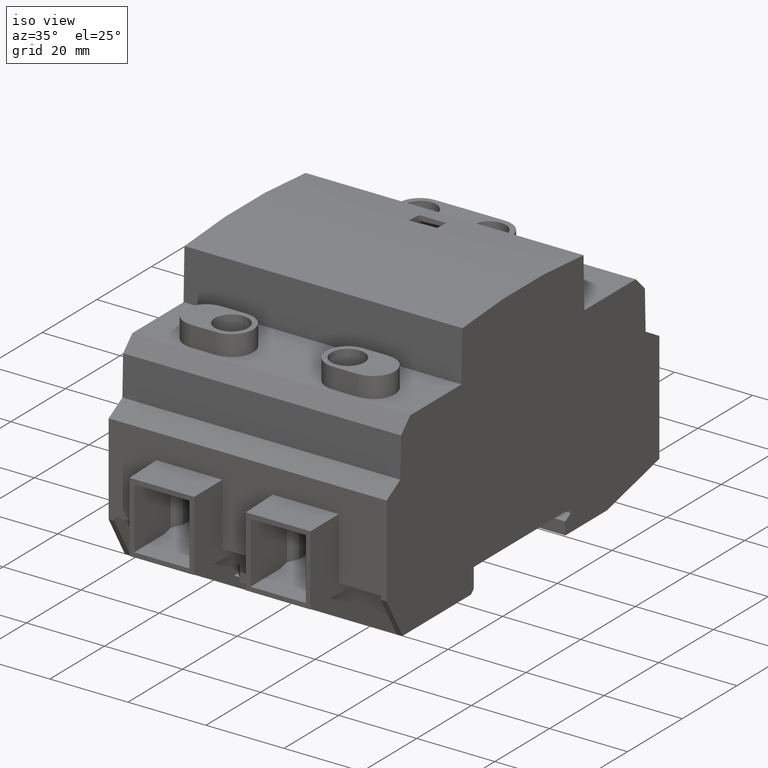
[diagram: clean part render]
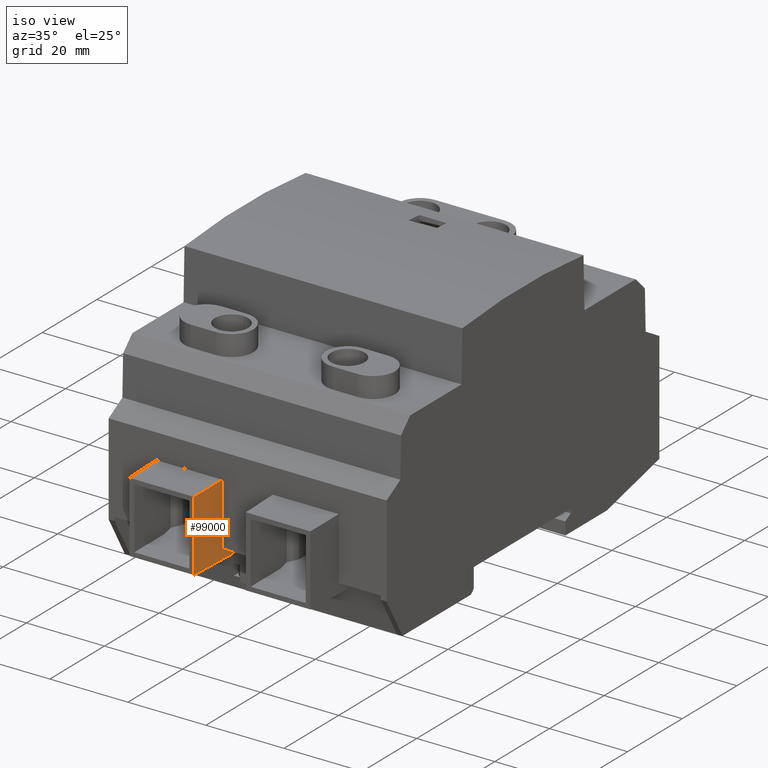
[diagram: same view with one face highlighted and labeled with its STEP entity id]
A machine part, iso view. The second image highlights one B-rep face of the part: STEP entity #99000.
In plain terms, the highlighted planar face has unit normal (0.9998, -0.0175, -0).
Its self-contained STEP definition (entity closure, byte-faithful):
#120=CARTESIAN_POINT('',(205.170798699035,175.524683156005,
50.958852647941));
#130=VERTEX_POINT('',#120);
#280=CARTESIAN_POINT('',(201.436580793455,174.524102483843,
50.8936716319437));
#290=VERTEX_POINT('',#280);
#320=CARTESIAN_POINT('',(287.574663199032,197.604732101982,
52.3972174531082));
#330=DIRECTION('',(0.965788563855183,0.25878226574421,0.0168579020888312
));
#340=VECTOR('',#330,1.);
#350=LINE('',#320,#340);
#360=EDGE_CURVE('',#290,#130,#350,.T.);
#1980=CARTESIAN_POINT('',(201.115601957728,173.007060643003,
50.8880689255266));
#1990=VERTEX_POINT('',#1980);
#2160=CARTESIAN_POINT('',(215.270798699474,173.254140520508,
51.1351488037253));
#2170=VERTEX_POINT('',#2160);
#2200=CARTESIAN_POINT('',(287.574663199032,174.516209166366,
52.3972174531252));
#2210=DIRECTION('',(0.999695459882742,0.0174497491117048,
0.0174497491606851));
#2220=VECTOR('',#2210,1.);
#2230=LINE('',#2200,#2220);
#2240=EDGE_CURVE('',#1990,#2170,#2230,.T.);
#7180=CARTESIAN_POINT('',(164.510411907698,2.8421709430404E-14,
50.2491229566215));
#7190=DIRECTION('',(0.206998065609566,0.978334679889726,
0.00361316467450697));
#7200=VECTOR('',#7190,1.);
#7210=LINE('',#7180,#7200);
#7220=EDGE_CURVE('',#1990,#290,#7210,.T.);
#91690=CARTESIAN_POINT('',(215.27079870036,191.344037660158,
51.1351488037274));
#91700=VERTEX_POINT('',#91690);
#91730=CARTESIAN_POINT('',(215.270798690986,2.8421709430404E-14,
51.1351488037053));
#91740=DIRECTION('',(4.89933039805302E-11,1.,1.15633470332053E-13));
#91750=VECTOR('',#91740,1.);
#91760=LINE('',#91730,#91750);
#91770=EDGE_CURVE('',#2170,#91700,#91760,.T.);
#98600=CARTESIAN_POINT('',(205.170798699031,191.520333816452,
50.9588526479291));
#98610=VERTEX_POINT('',#98600);
#98640=CARTESIAN_POINT('',(22.9999999999879,194.700136944696,
47.7790495286096));
#98650=DIRECTION('',(0.999695459881033,-0.0174497492096606,
0.017449749160681));
#98660=VECTOR('',#98650,1.);
#98670=LINE('',#98640,#98660);
#98680=EDGE_CURVE('',#98610,#91700,#98670,.T.);
#98820=CARTESIAN_POINT('',(220.770798701647,-2.13958628592081E-9,
51.2311516609966));
#98830=DIRECTION('',(0.0174524064372839,-7.39435194979172E-13,
-0.999847695156391));
#98840=DIRECTION('',(-3.26646849351639E-11,-1.,1.69383635292951E-13));
#98850=AXIS2_PLACEMENT_3D('',#98820,#98830,#98840);
#98860=PLANE('',#98850);
#98870=ORIENTED_EDGE('',*,*,#7220,.T.);
#98880=ORIENTED_EDGE('',*,*,#2240,.F.);
#98890=ORIENTED_EDGE('',*,*,#91770,.F.);
#98900=ORIENTED_EDGE('',*,*,#98680,.T.);
#98910=CARTESIAN_POINT('',(205.170798699085,2.8421709430404E-14,
50.9588526480717));
#98920=DIRECTION('',(-2.8421709430404E-13,1.,-7.44508859530806E-13));
#98930=VECTOR('',#98920,1.);
#98940=LINE('',#98910,#98930);
#98950=EDGE_CURVE('',#130,#98610,#98940,.T.);
#98960=ORIENTED_EDGE('',*,*,#98950,.T.);
#98970=ORIENTED_EDGE('',*,*,#360,.T.);
#98980=EDGE_LOOP('',(#98970,#98960,#98900,#98890,#98880,#98870));
#98990=FACE_OUTER_BOUND('',#98980,.T.);
#99000=ADVANCED_FACE('',(#98990),#98860,.T.);